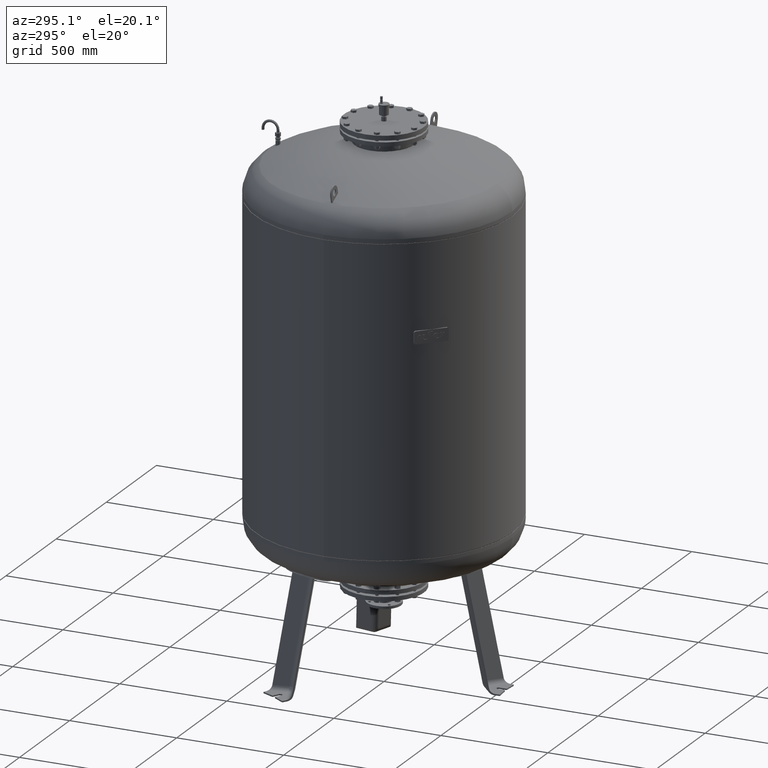
[diagram: clean part render]
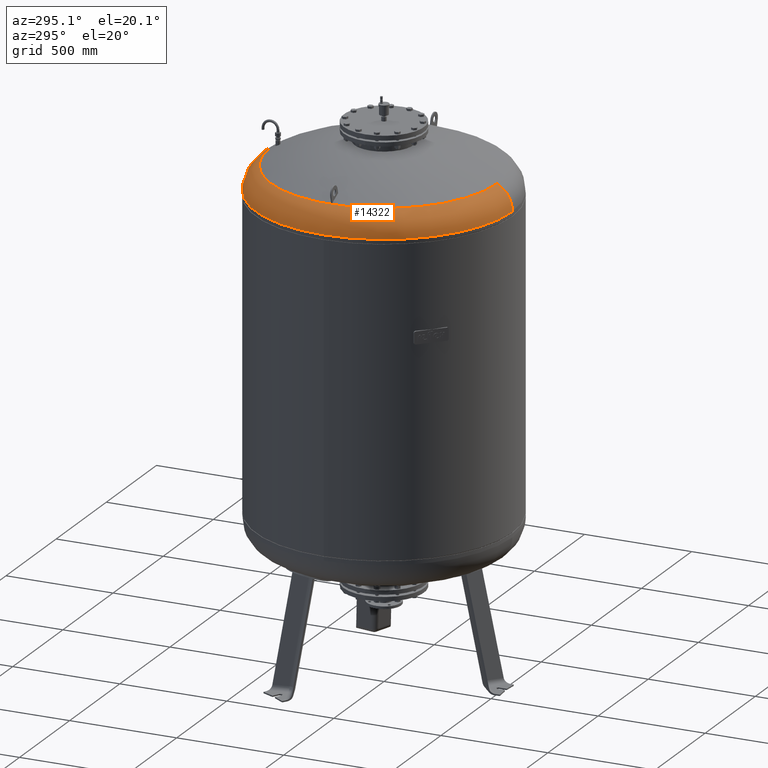
[diagram: same view with one face highlighted and labeled with its STEP entity id]
A machine part, auxiliary view. The second image highlights one B-rep face of the part: STEP entity #14322.
In plain terms, the highlighted toroidal blend (fillet) surface has major radius 473 mm and minor (blend) radius 127 mm.
Its self-contained STEP definition (entity closure, byte-faithful):
#13561=CARTESIAN_POINT('',(-599.999999999999890,3.010780E-014,2163.912457433727500));
#13562=VERTEX_POINT('',#13561);
#13569=CARTESIAN_POINT('',(1.156183E-013,600.0,2163.912457433727500));
#13570=VERTEX_POINT('',#13569);
#13571=CARTESIAN_POINT('',(6.604942E-015,-4.336858E-014,2163.912457433727500));
#13572=DIRECTION('',(0.0,0.0,-1.0));
#13573=DIRECTION('',(1.0,0.0,0.0));
#13574=AXIS2_PLACEMENT_3D('',#13571,#13572,#13573);
#13575=CIRCLE('',#13574,600.0);
#13576=EDGE_CURVE('',#13562,#13570,#13575,.T.);
#13593=CARTESIAN_POINT('',(4.214189E-014,-600.0,2163.912457433727500));
#13594=VERTEX_POINT('',#13593);
#13595=CARTESIAN_POINT('',(3.894773E-014,-528.621296296296240,2278.084570483804800));
#13596=VERTEX_POINT('',#13595);
#13597=CARTESIAN_POINT('',(4.214189E-014,-472.999999999999940,2163.912457433727500));
#13598=DIRECTION('',(-1.0,0.0,0.0));
#13599=DIRECTION('',(0.0,-1.0,0.0));
#13600=AXIS2_PLACEMENT_3D('',#13597,#13598,#13599);
#13601=CIRCLE('',#13600,127.000000000000010);
#13602=EDGE_CURVE('',#13594,#13596,#13601,.T.);
#13612=CARTESIAN_POINT('',(1.036830E-013,528.621296296296240,2278.084570483804800));
#13613=VERTEX_POINT('',#13612);
#13614=CARTESIAN_POINT('',(1.000658E-013,472.999999999999830,2163.912457433727500));
#13615=DIRECTION('',(1.0,0.0,0.0));
#13616=DIRECTION('',(0.0,1.0,0.0));
#13617=AXIS2_PLACEMENT_3D('',#13614,#13615,#13616);
#13618=CIRCLE('',#13617,127.000000000000010);
#13619=EDGE_CURVE('',#13570,#13613,#13618,.T.);
#14294=CARTESIAN_POINT('',(3.410787E-015,-2.239550E-014,2278.084570483804800));
#14295=DIRECTION('',(0.0,0.0,-1.0));
#14296=DIRECTION('',(1.0,0.0,0.0));
#14297=AXIS2_PLACEMENT_3D('',#14294,#14295,#14296);
#14298=CIRCLE('',#14297,528.621296296296240);
#14299=EDGE_CURVE('',#13596,#13613,#14298,.T.);
#14304=CARTESIAN_POINT('',(4.214189E-014,-4.336858E-014,2163.912457433727500));
#14305=DIRECTION('',(2.797667E-017,-1.836970E-016,-1.0));
#14306=DIRECTION('',(0.0,-1.0,0.0));
#14307=AXIS2_PLACEMENT_3D('',#14304,#14305,#14306);
#14308=TOROIDAL_SURFACE('',#14307,472.999999999999890,127.000000000000010);
#14309=ORIENTED_EDGE('',*,*,#13602,.T.);
#14310=ORIENTED_EDGE('',*,*,#14299,.T.);
#14311=ORIENTED_EDGE('',*,*,#13619,.F.);
#14312=ORIENTED_EDGE('',*,*,#13576,.F.);
#14313=CARTESIAN_POINT('',(6.604942E-015,-4.336858E-014,2163.912457433727500));
#14314=DIRECTION('',(0.0,0.0,-1.0));
#14315=DIRECTION('',(1.0,0.0,0.0));
#14316=AXIS2_PLACEMENT_3D('',#14313,#14314,#14315);
#14317=CIRCLE('',#14316,600.0);
#14318=EDGE_CURVE('',#13594,#13562,#14317,.T.);
#14319=ORIENTED_EDGE('',*,*,#14318,.F.);
#14320=EDGE_LOOP('',(#14309,#14310,#14311,#14312,#14319));
#14321=FACE_OUTER_BOUND('',#14320,.T.);
#14322=ADVANCED_FACE('',(#14321),#14308,.T.);